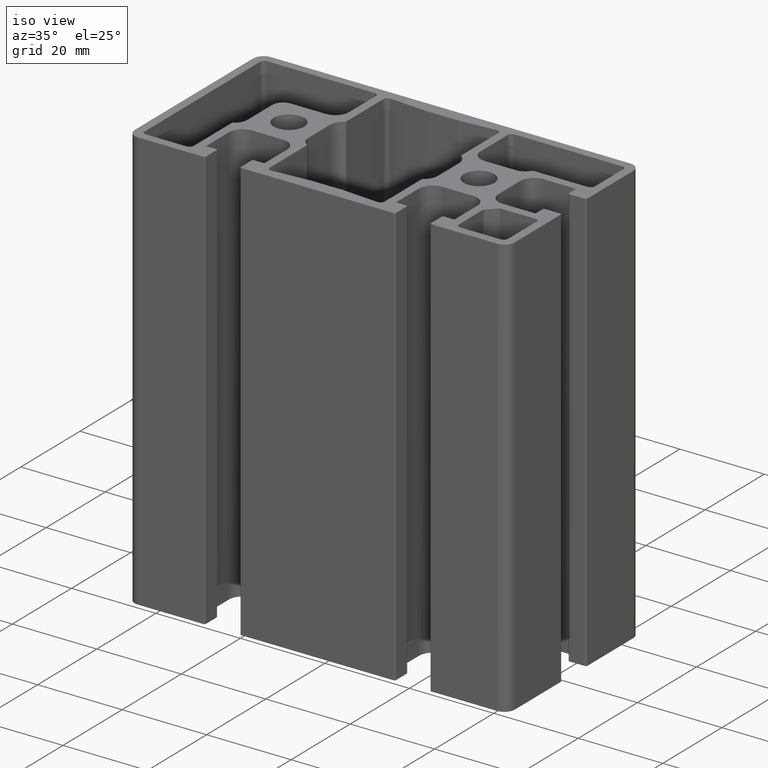
[diagram: clean part render]
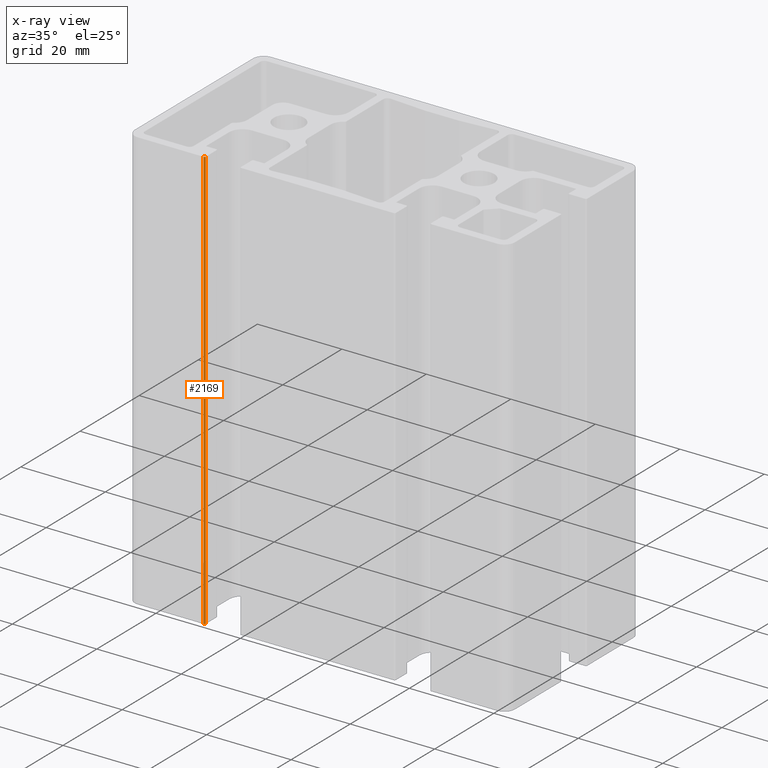
[diagram: x-ray — body ghosted, one internal face saturated and labeled with its STEP entity id]
A machine part, iso view, then the same camera in x-ray: the body is ghosted and one INTERNAL B-rep face — a face not visible from any outside direction — is saturated and labeled: STEP entity #2169.
In plain terms, the highlighted cylindrical surface (edge-blend (fillet) strip) has radius 0.3 mm, axis along (0, 0, 1).
Its self-contained STEP definition (entity closure, byte-faithful):
#124=FACE_OUTER_BOUND('',#236,.T.);
#236=EDGE_LOOP('',(#1568,#1569,#1570,#1571));
#399=LINE('',#3343,#621);
#401=LINE('',#3349,#623);
#621=VECTOR('',#2680,100.);
#623=VECTOR('',#2686,100.);
#804=CIRCLE('',#2318,0.299999999999997);
#805=CIRCLE('',#2319,0.299999999999997);
#948=VERTEX_POINT('',#3340);
#949=VERTEX_POINT('',#3342);
#950=VERTEX_POINT('',#3346);
#951=VERTEX_POINT('',#3348);
#1203=EDGE_CURVE('',#949,#948,#399,.T.);
#1205=EDGE_CURVE('',#950,#948,#804,.T.);
#1206=EDGE_CURVE('',#950,#951,#401,.T.);
#1207=EDGE_CURVE('',#949,#951,#805,.T.);
#1568=ORIENTED_EDGE('',*,*,#1205,.F.);
#1569=ORIENTED_EDGE('',*,*,#1206,.T.);
#1570=ORIENTED_EDGE('',*,*,#1207,.F.);
#1571=ORIENTED_EDGE('',*,*,#1203,.T.);
#2097=CYLINDRICAL_SURFACE('',#2317,0.299999999999997);
#2169=ADVANCED_FACE('',(#124),#2097,.T.);
#2317=AXIS2_PLACEMENT_3D('',#3345,#2682,#2683);
#2318=AXIS2_PLACEMENT_3D('',#3347,#2684,#2685);
#2319=AXIS2_PLACEMENT_3D('',#3350,#2687,#2688);
#2680=DIRECTION('',(0.,0.,1.));
#2682=DIRECTION('center_axis',(0.,0.,1.));
#2683=DIRECTION('ref_axis',(1.48029736616689E-14,1.,0.));
#2684=DIRECTION('center_axis',(0.,0.,1.));
#2685=DIRECTION('ref_axis',(1.48029736616689E-14,1.,0.));
#2686=DIRECTION('',(0.,0.,-1.));
#2687=DIRECTION('center_axis',(0.,0.,-1.));
#2688=DIRECTION('ref_axis',(1.48029736616689E-14,1.,0.));
#3340=CARTESIAN_POINT('',(-26.65,-22.2,100.));
#3342=CARTESIAN_POINT('',(-26.65,-22.2,0.));
#3343=CARTESIAN_POINT('',(-26.65,-22.2,0.));
#3345=CARTESIAN_POINT('Origin',(-26.95,-22.2,0.));
#3346=CARTESIAN_POINT('',(-26.95,-22.5,100.));
#3347=CARTESIAN_POINT('Origin',(-26.95,-22.2,100.));
#3348=CARTESIAN_POINT('',(-26.95,-22.5,0.));
#3349=CARTESIAN_POINT('',(-26.95,-22.5,0.));
#3350=CARTESIAN_POINT('Origin',(-26.95,-22.2,0.));